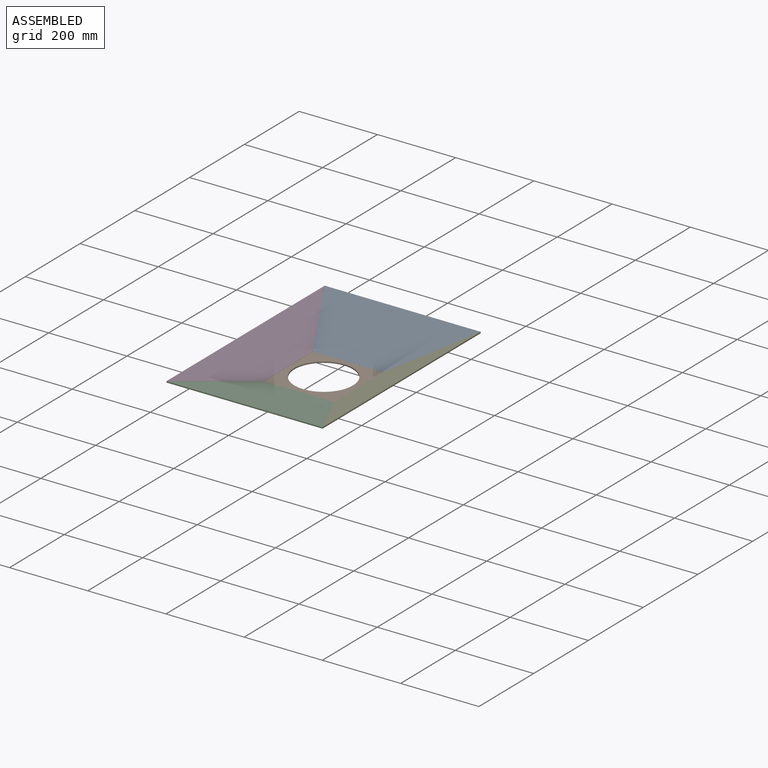
[diagram: assembled view]
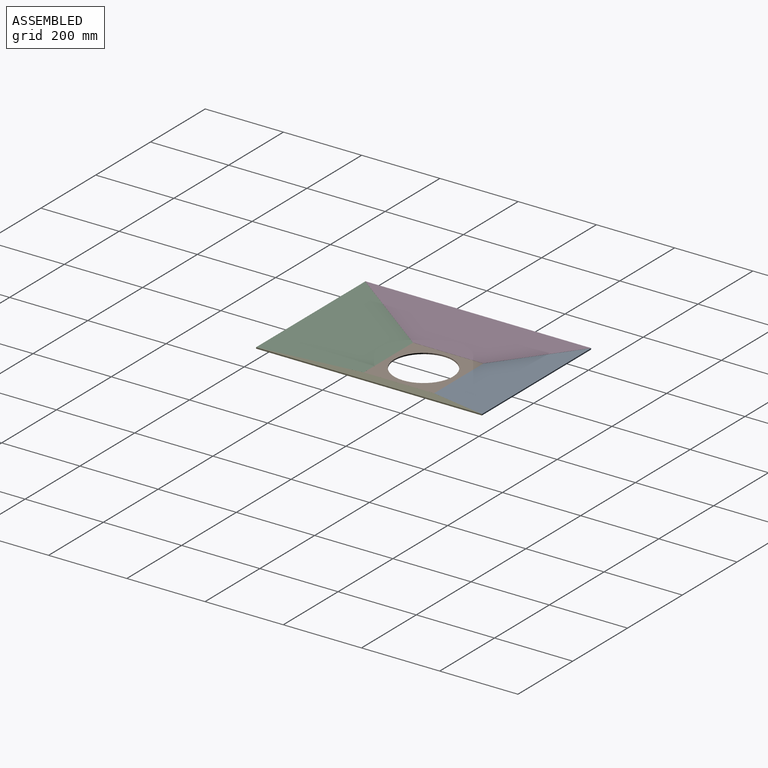
[diagram: assembled view, second angle]
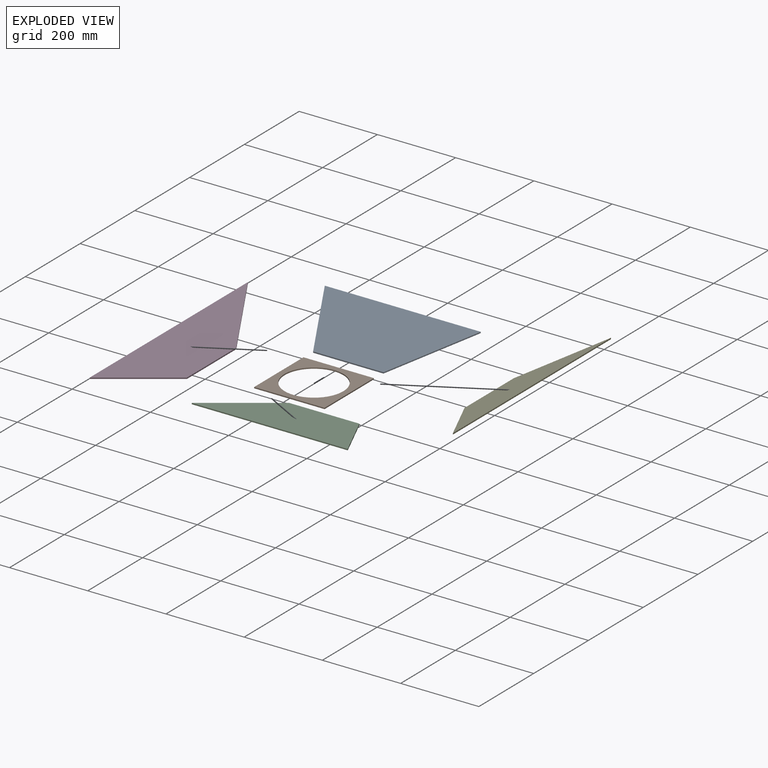
[diagram: exploded view]
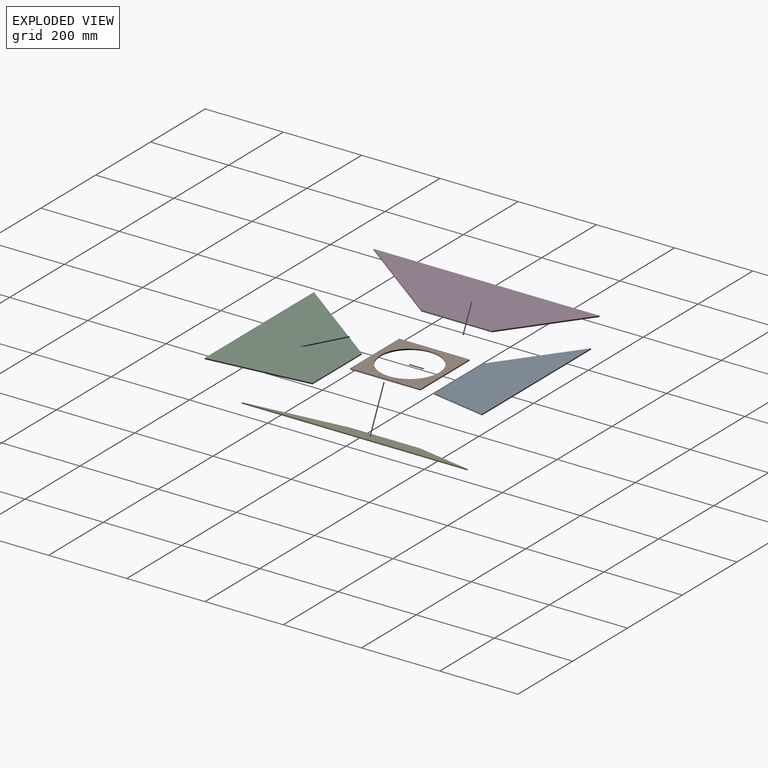
[diagram: exploded view, second angle]
ASSEMBLY  parts=5 mates=4
PART A: 6 faces, bbox 398.8x205x3 mm
  f0: plane 398.77x204.3mm, normal (0,0,1), area 59119.7mm2, adj f2,f3,f4,f5
  f1: plane 398.77x204.3mm, normal (0,0,-1), area 59119.4mm2, adj f2,f3,f4,f5
  f2: plane 205x109.38mm, normal (0.88,-0.47,0.11), area 699.5mm2, adj f0,f1,f4,f5
  f3: plane 205x109.38mm, normal (-0.88,-0.47,0.11), area 699.5mm2, adj f0,f1,f4,f5
  f4: plane 180x3mm, normal (0,-0.97,0.23), area 554.7mm2, adj f0,f1,f2,f3
  f5: plane 398.77x3mm, normal (0,0.97,-0.23), area 1228.9mm2, adj f0,f1,f2,f3
PART B: 7 faces, bbox 180x180x3 mm
  f0: plane 180x3mm, normal (0,1,0), area 540mm2, adj f1,f4,f5,f6
  f1: plane 180x3mm, normal (-1,0,0), area 540mm2, adj f0,f2,f5,f6
  f2: plane 180x3mm, normal (0,-1,0), area 540mm2, adj f1,f4,f5,f6
  f3: cylinder r=75mm len=150mm, axis (0,0,-1), area 1413.7mm2, adj f5,f6
  f4: plane 180x3mm, normal (1,0,0), area 540mm2, adj f0,f2,f5,f6
  f5: plane 180x180mm, normal (0,0,1), area 14728.5mm2, adj f0,f1,f2,f3,f4
  f6: plane 180x180mm, normal (0,0,-1), area 14728.5mm2, adj f0,f1,f2,f3,f4
PART C: same geometry as A
PART D: 6 faces, bbox 577.7x120.2x3 mm
  f0: plane 577.65x118.92mm, normal (0,0,1), area 45049.3mm2, adj f2,f3,f4,f5
  f1: plane 577.65x118.92mm, normal (0,0,-1), area 45049.4mm2, adj f2,f3,f4,f5
  f2: plane 198.83x120.2mm, normal (-0.48,-0.81,0.34), area 740.3mm2, adj f0,f1,f4,f5
  f3: plane 198.83x120.2mm, normal (0.48,-0.81,0.34), area 740.3mm2, adj f0,f1,f4,f5
  f4: plane 180x3mm, normal (0,-0.92,0.39), area 587.2mm2, adj f0,f1,f2,f3
  f5: plane 577.65x3mm, normal (0,0.92,-0.39), area 1884.5mm2, adj f0,f1,f2,f3
PART E: same geometry as D
PLACE A rot(axis=(1,0,0),13.2deg) t=(13.44,17.92,-121.31)mm
PLACE B t=(13.44,-72.08,-121.27)mm fixed
PLACE C rot(axis=(0,0.11,0.99),180deg) t=(13.44,-162.02,-121.36)mm
PLACE D rot(axis=(0.2,0.2,0.96),92.3deg) t=(-76.58,-72.05,-121.27)mm
PLACE E rot(axis=(0.2,-0.2,-0.96),92.3deg) t=(103.47,-72.05,-121.53)mm
MATE planar A.f4 <-> B.f0  axis (0,-1,0) through (13.44,17.92,-119.77)mm
MATE planar D.f3 <-> A.f3  axis (0.88,0.48,0) through (-131.25,117.36,-96.28)mm
MATE planar E.f3 <-> C.f3  axis (-0.88,-0.48,0) through (158.12,-261.47,-96.51)mm
MATE planar D.f2 <-> C.f2  axis (0.88,-0.48,0) through (-131.26,-261.46,-96.28)mm
